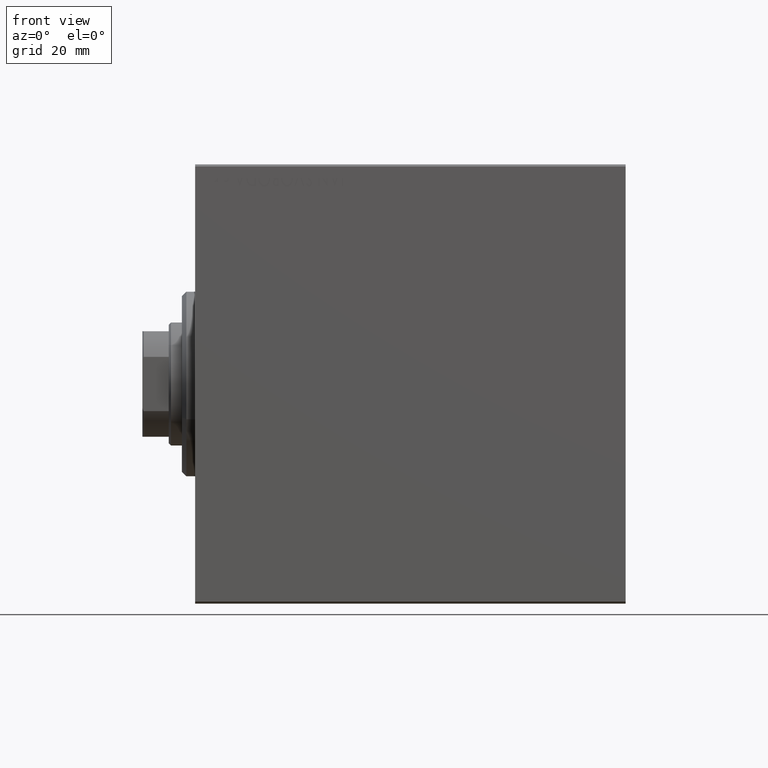
[diagram: clean part render]
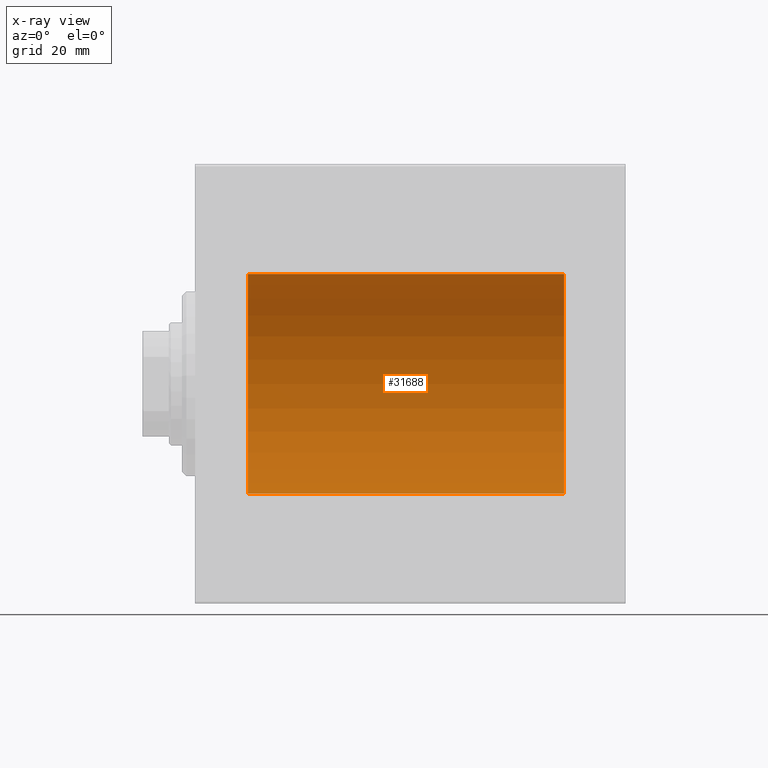
[diagram: x-ray — body ghosted, one internal face saturated and labeled with its STEP entity id]
A machine part, front view, then the same camera in x-ray: the body is ghosted and one INTERNAL B-rep face — a face not visible from any outside direction — is saturated and labeled: STEP entity #31688.
In plain terms, the highlighted cylindrical surface (partial cylindrical patch) has radius 25 mm, axis along (-1, -0, -0).
Its self-contained STEP definition (entity closure, byte-faithful):
#116 = DIRECTION ( 'NONE',  ( -1.000000000000000000, -0.000000000000000000, -0.000000000000000000 ) ) ;
#852 = CARTESIAN_POINT ( 'NONE',  ( 11.99999999999999645, 3.061616997868382254E-15, -25.00000000000000000 ) ) ;
#2947 = AXIS2_PLACEMENT_3D ( 'NONE', #21525, #7992, #18193 ) ;
#3811 = AXIS2_PLACEMENT_3D ( 'NONE', #25693, #29015, #42751 ) ;
#6710 = CYLINDRICAL_SURFACE ( 'NONE', #28894, 25.00000000000000000 ) ;
#6806 = CARTESIAN_POINT ( 'NONE',  ( 84.00000000000000000, 3.061616997868382254E-15, -25.00000000000000000 ) ) ;
#7146 = DIRECTION ( 'NONE',  ( 0.000000000000000000, 0.000000000000000000, 1.000000000000000000 ) ) ;
#7370 = ORIENTED_EDGE ( 'NONE', *, *, #31738, .T. ) ;
#7992 = DIRECTION ( 'NONE',  ( -1.000000000000000000, 0.000000000000000000, 0.000000000000000000 ) ) ;
#9133 = EDGE_CURVE ( 'NONE', #25517, #18018, #24894, .T. ) ;
#10457 = VECTOR ( 'NONE', #20239, 1000.000000000000000 ) ;
#10932 = EDGE_LOOP ( 'NONE', ( #20795, #41584, #7370, #33242 ) ) ;
#13138 = CARTESIAN_POINT ( 'NONE',  ( 84.00000000000000000, 0.000000000000000000, 0.000000000000000000 ) ) ;
#14589 = EDGE_CURVE ( 'NONE', #16650, #42806, #20061, .T. ) ;
#16650 = VERTEX_POINT ( 'NONE', #21063 ) ;
#17345 = LINE ( 'NONE', #23345, #10457 ) ;
#18018 = VERTEX_POINT ( 'NONE', #6806 ) ;
#18193 = DIRECTION ( 'NONE',  ( 0.000000000000000000, 0.000000000000000000, 1.000000000000000000 ) ) ;
#20061 = CIRCLE ( 'NONE', #3811, 25.00000000000000000 ) ;
#20239 = DIRECTION ( 'NONE',  ( -1.000000000000000000, -0.000000000000000000, -0.000000000000000000 ) ) ;
#20795 = ORIENTED_EDGE ( 'NONE', *, *, #22804, .F. ) ;
#21063 = CARTESIAN_POINT ( 'NONE',  ( 11.99999999999999645, 0.000000000000000000, 25.00000000000000000 ) ) ;
#21525 = CARTESIAN_POINT ( 'NONE',  ( 84.00000000000000000, 0.000000000000000000, 0.000000000000000000 ) ) ;
#21671 = VECTOR ( 'NONE', #116, 1000.000000000000000 ) ;
#22804 = EDGE_CURVE ( 'NONE', #18018, #42806, #36885, .T. ) ;
#23345 = CARTESIAN_POINT ( 'NONE',  ( 84.00000000000000000, 0.000000000000000000, 25.00000000000000000 ) ) ;
#24894 = CIRCLE ( 'NONE', #2947, 25.00000000000000000 ) ;
#25517 = VERTEX_POINT ( 'NONE', #32363 ) ;
#25693 = CARTESIAN_POINT ( 'NONE',  ( 11.99999999999999645, 0.000000000000000000, 0.000000000000000000 ) ) ;
#28894 = AXIS2_PLACEMENT_3D ( 'NONE', #13138, #40190, #7146 ) ;
#29015 = DIRECTION ( 'NONE',  ( -1.000000000000000000, 0.000000000000000000, 0.000000000000000000 ) ) ;
#31688 = ADVANCED_FACE ( 'NONE', ( #40852 ), #6710, .F. ) ;
#31738 = EDGE_CURVE ( 'NONE', #25517, #16650, #17345, .T. ) ;
#32363 = CARTESIAN_POINT ( 'NONE',  ( 84.00000000000000000, 0.000000000000000000, 25.00000000000000000 ) ) ;
#33242 = ORIENTED_EDGE ( 'NONE', *, *, #14589, .T. ) ;
#36885 = LINE ( 'NONE', #37114, #21671 ) ;
#37114 = CARTESIAN_POINT ( 'NONE',  ( 84.00000000000000000, 3.061616997868382254E-15, -25.00000000000000000 ) ) ;
#40190 = DIRECTION ( 'NONE',  ( -1.000000000000000000, -0.000000000000000000, -0.000000000000000000 ) ) ;
#40852 = FACE_OUTER_BOUND ( 'NONE', #10932, .T. ) ;
#41584 = ORIENTED_EDGE ( 'NONE', *, *, #9133, .F. ) ;
#42751 = DIRECTION ( 'NONE',  ( 0.000000000000000000, 0.000000000000000000, 1.000000000000000000 ) ) ;
#42806 = VERTEX_POINT ( 'NONE', #852 ) ;